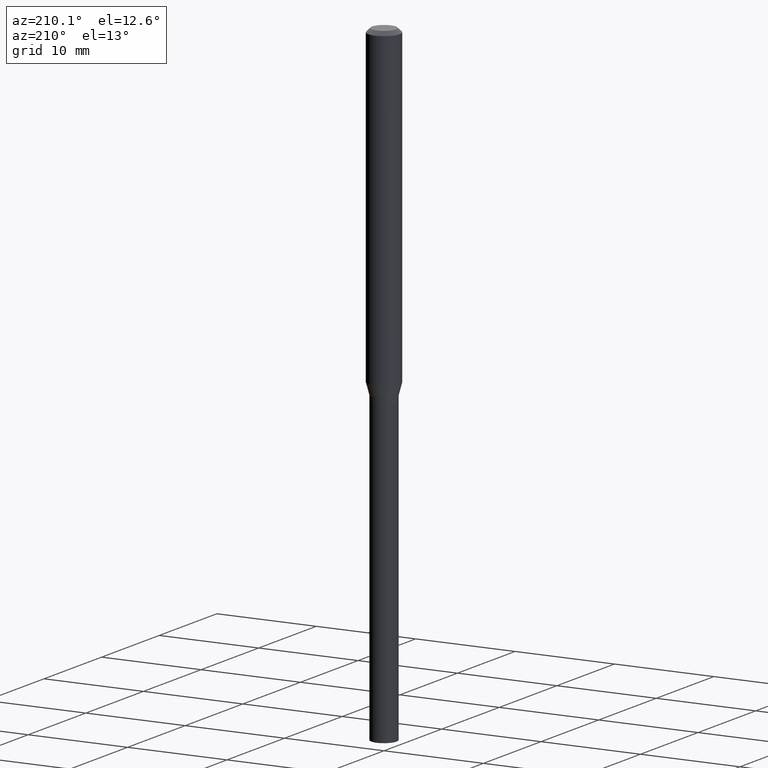
[diagram: clean part render]
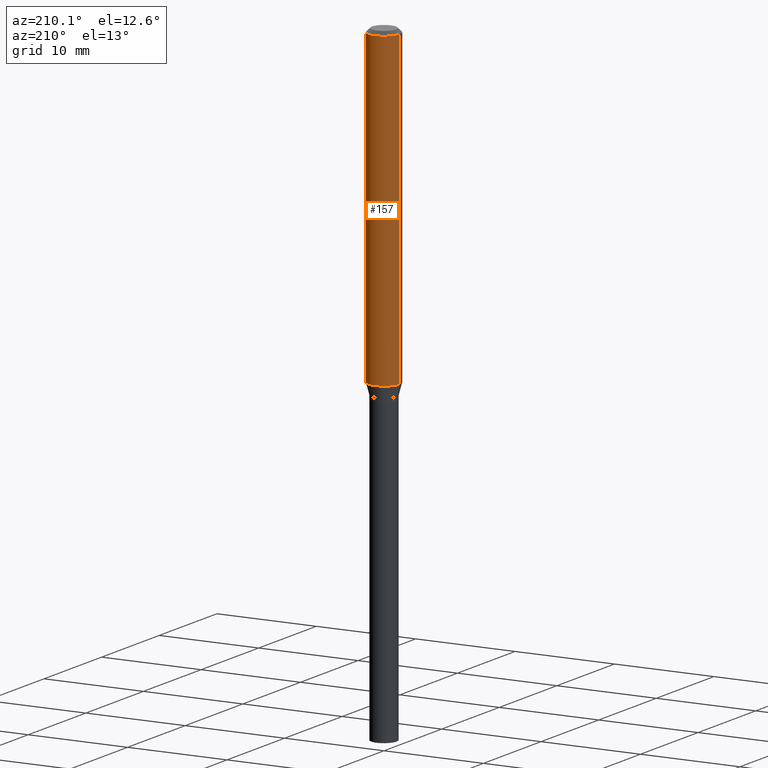
[diagram: same view with one face highlighted and labeled with its STEP entity id]
A machine part, auxiliary view. The second image highlights one B-rep face of the part: STEP entity #157.
In plain terms, the highlighted cylindrical surface (edge-blend (fillet) strip) has radius 1.5875 mm, axis along (-0, 0, 1).
Its self-contained STEP definition (entity closure, byte-faithful):
#25 = CARTESIAN_POINT ( 'NONE',  ( 3.668203209277705088E-31, -5.237222008264718399E-17, -0.01499999999999999944 ) ) ;
#31 = DIRECTION ( 'NONE',  ( -2.445468806185136597E-29, 3.491481338843145583E-15, 1.000000000000000000 ) ) ;
#65 = DIRECTION ( 'NONE',  ( 1.000000000000000000, -6.982962677686266711E-15, 0.000000000000000000 ) ) ;
#68 = CARTESIAN_POINT ( 'NONE',  ( -0.06250000000000000000, -1.752662452806080514E-15, -0.01499999999999999944 ) ) ;
#79 = CARTESIAN_POINT ( 'NONE',  ( -0.06250000000000000000, -3.897041895379576565E-15, -1.243349364905387944 ) ) ;
#87 = DIRECTION ( 'NONE',  ( -2.445468806185136597E-29, 3.491481338843145583E-15, 1.000000000000000000 ) ) ;
#94 = CIRCLE ( 'NONE', #102, 0.06250000000000000000 ) ;
#97 = LINE ( 'NONE', #359, #367 ) ;
#98 = VERTEX_POINT ( 'NONE', #382 ) ;
#102 = AXIS2_PLACEMENT_3D ( 'NONE', #25, #31, #65 ) ;
#109 = DIRECTION ( 'NONE',  ( -2.445468806185136877E-29, 3.491481338843145188E-15, 1.000000000000000000 ) ) ;
#144 = AXIS2_PLACEMENT_3D ( 'NONE', #381, #230, #267 ) ;
#147 = EDGE_CURVE ( 'NONE', #98, #459, #461, .T. ) ;
#157 = ADVANCED_FACE ( 'NONE', ( #339 ), #308, .T. ) ;
#162 = EDGE_CURVE ( 'NONE', #98, #433, #201, .T. ) ;
#184 = VECTOR ( 'NONE', #303, 39.37007874015748143 ) ;
#201 = LINE ( 'NONE', #310, #184 ) ;
#230 = DIRECTION ( 'NONE',  ( -2.445468806185136597E-29, 3.491481338843145583E-15, 1.000000000000000000 ) ) ;
#235 = ORIENTED_EDGE ( 'NONE', *, *, #162, .F. ) ;
#267 = DIRECTION ( 'NONE',  ( 1.000000000000000000, -6.982962677686266711E-15, 4.876176775795935793E-29 ) ) ;
#281 = VERTEX_POINT ( 'NONE', #68 ) ;
#302 = CARTESIAN_POINT ( 'NONE',  ( 3.040572087066227108E-29, -4.341131105229639181E-15, -1.243349364905387944 ) ) ;
#303 = DIRECTION ( 'NONE',  ( -2.445468806185136877E-29, 3.491481338843145188E-15, 1.000000000000000000 ) ) ;
#308 = CYLINDRICAL_SURFACE ( 'NONE', #144, 0.06250000000000000000 ) ;
#310 = CARTESIAN_POINT ( 'NONE',  ( 0.06250000000000000000, -4.364351673553916694E-16, 3.047610484872459871E-30 ) ) ;
#328 = CARTESIAN_POINT ( 'NONE',  ( 0.06250000000000000000, -4.888073874380388472E-16, -0.01499999999999999944 ) ) ;
#338 = EDGE_CURVE ( 'NONE', #433, #281, #94, .T. ) ;
#339 = FACE_OUTER_BOUND ( 'NONE', #395, .T. ) ;
#354 = ORIENTED_EDGE ( 'NONE', *, *, #379, .T. ) ;
#359 = CARTESIAN_POINT ( 'NONE',  ( -0.06250000000000000000, 4.440892098500626162E-16, -3.074334431409316114E-30 ) ) ;
#367 = VECTOR ( 'NONE', #109, 39.37007874015748143 ) ;
#374 = DIRECTION ( 'NONE',  ( 1.000000000000000000, -6.982962677686270655E-15, 0.000000000000000000 ) ) ;
#379 = EDGE_CURVE ( 'NONE', #459, #281, #97, .T. ) ;
#381 = CARTESIAN_POINT ( 'NONE',  ( 0.000000000000000000, 0.000000000000000000, 0.000000000000000000 ) ) ;
#382 = CARTESIAN_POINT ( 'NONE',  ( 0.06250000000000000000, -4.777566272585030851E-15, -1.243349364905387944 ) ) ;
#395 = EDGE_LOOP ( 'NONE', ( #465, #354, #463, #235 ) ) ;
#433 = VERTEX_POINT ( 'NONE', #328 ) ;
#453 = AXIS2_PLACEMENT_3D ( 'NONE', #302, #87, #374 ) ;
#459 = VERTEX_POINT ( 'NONE', #79 ) ;
#461 = CIRCLE ( 'NONE', #453, 0.06250000000000000000 ) ;
#463 = ORIENTED_EDGE ( 'NONE', *, *, #338, .F. ) ;
#465 = ORIENTED_EDGE ( 'NONE', *, *, #147, .T. ) ;